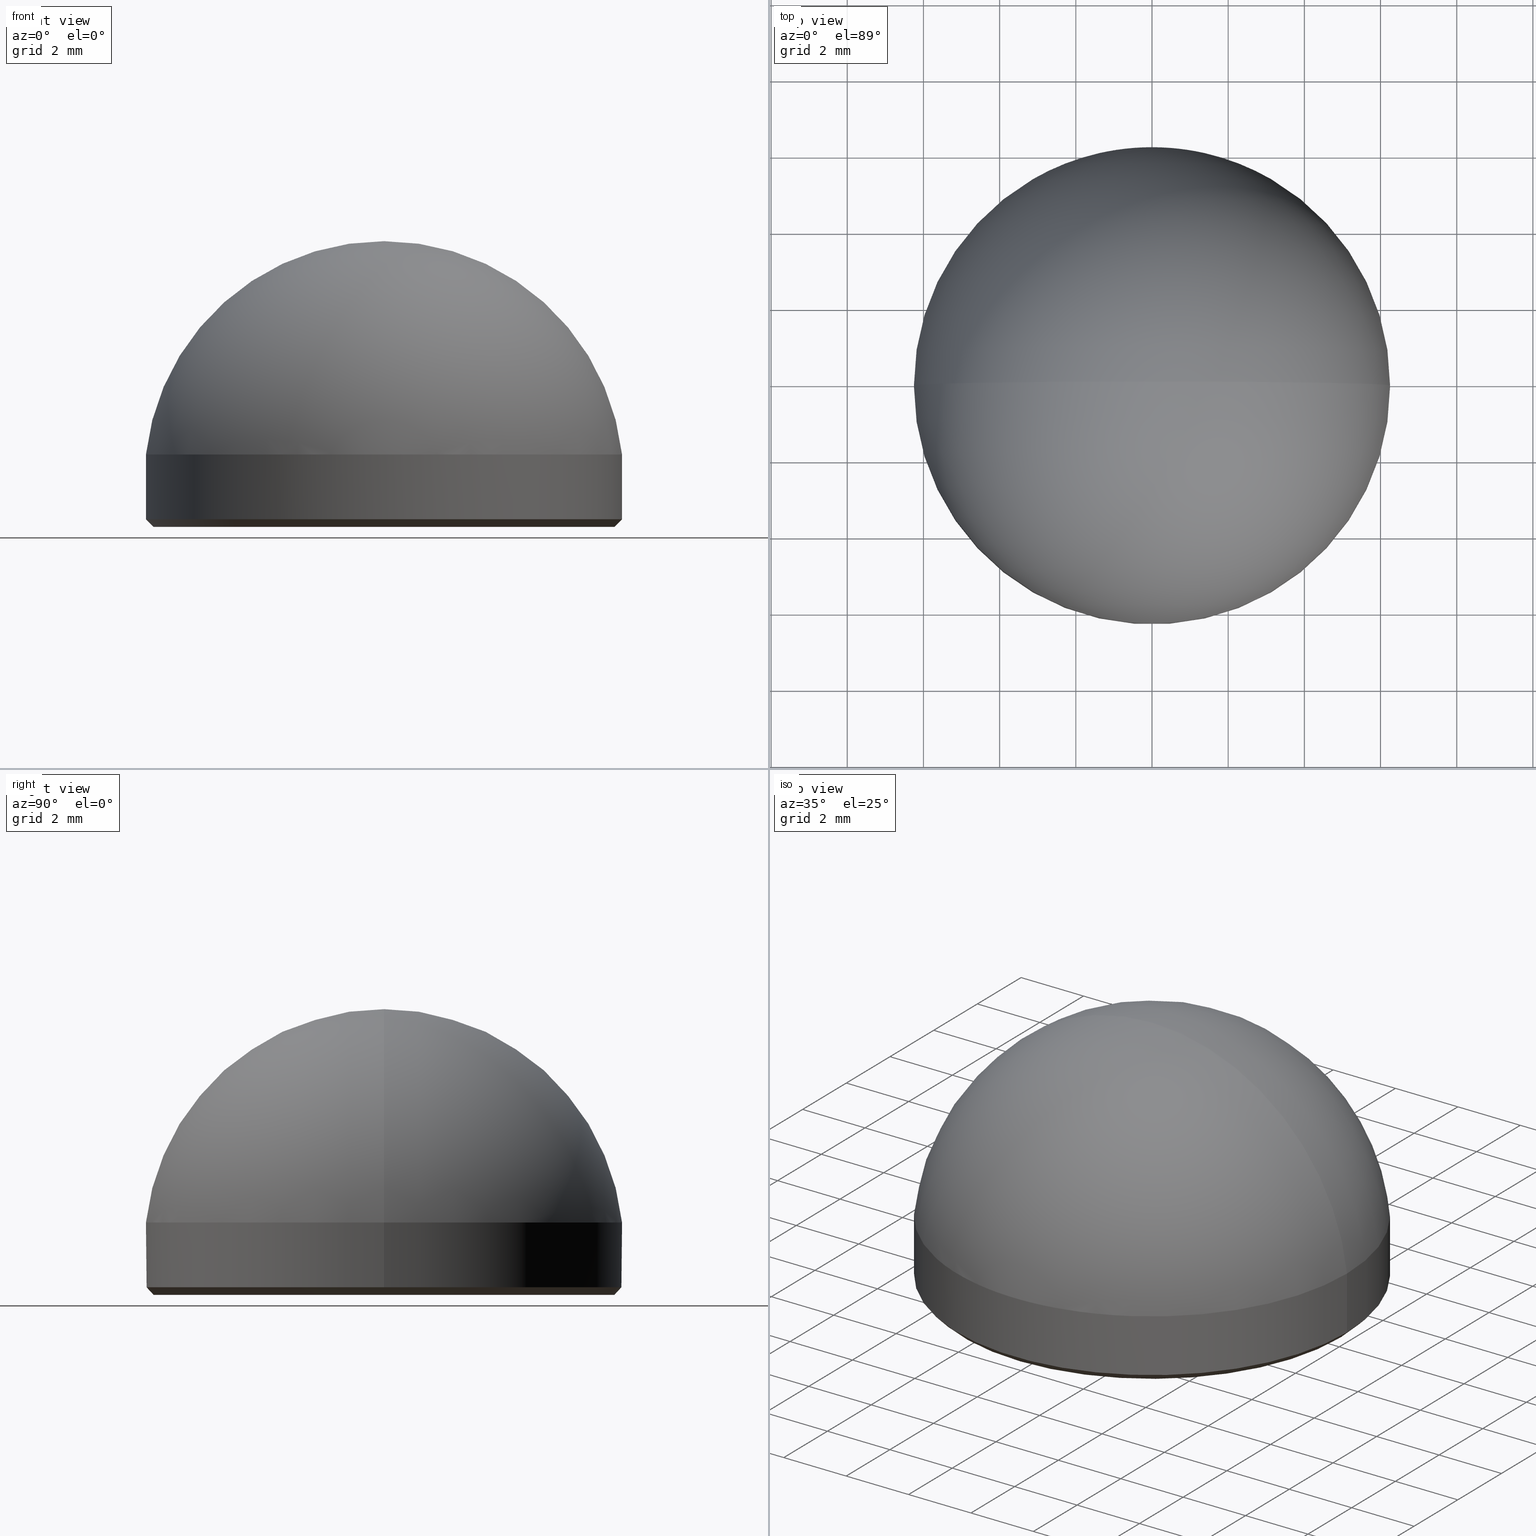
[diagram: canonical four-view strip — front | top / right | iso, engineering-drawing reading convention]
A machine part, canonical four-view strip (front | top / right | iso — engineering-drawing reading convention). The complete STEP part file that produces these views, byte-faithful:
ISO-10303-21;
HEADER;
FILE_DESCRIPTION (( 'STEP AP214' ),
    '1' );
FILE_NAME ('GLA21-012-010-UV.STEP',
    '2024-08-09T08:51:41',
    ( 'Windows User' ),
    ( 'P R C' ),
    'SwSTEP 2.0',
    'SolidWorks 2022',
    '' );
FILE_SCHEMA (( 'AUTOMOTIVE_DESIGN' ));
ENDSEC;

DATA;
#1 = VERTEX_POINT ( 'NONE', #51 ) ;
#2 = AXIS2_PLACEMENT_3D ( 'NONE', #143, #211, #59 ) ;
#3 =( NAMED_UNIT ( * ) PLANE_ANGLE_UNIT ( ) SI_UNIT ( $, .RADIAN. ) );
#4 =( NAMED_UNIT ( * ) PLANE_ANGLE_UNIT ( ) SI_UNIT ( $, .RADIAN. ) );
#5 = UNCERTAINTY_MEASURE_WITH_UNIT (LENGTH_MEASURE( 1.000000000000000082E-05 ), #66, 'distance_accuracy_value', 'NONE');
#6 = AXIS2_PLACEMENT_3D ( 'NONE', #45, #111, #176 ) ;
#7 = DIRECTION ( 'NONE',  ( 0.000000000000000000, 0.000000000000000000, 1.000000000000000000 ) ) ;
#8 =( NAMED_UNIT ( * ) SI_UNIT ( $, .STERADIAN. ) SOLID_ANGLE_UNIT ( ) );
#9 = DIRECTION ( 'NONE',  ( -0.000000000000000000, -0.000000000000000000, 1.000000000000000000 ) ) ;
#10 = DIRECTION ( 'NONE',  ( -0.000000000000000000, -0.000000000000000000, -1.000000000000000000 ) ) ;
#11 = DIRECTION ( 'NONE',  ( -0.000000000000000000, -0.000000000000000000, -1.000000000000000000 ) ) ;
#12 = VERTEX_POINT ( 'NONE', #181 ) ;
#13 = EDGE_CURVE ( 'NONE', #1, #200, #53, .T. ) ;
#14 = PRODUCT_DEFINITION_CONTEXT ( 'detailed design', #32, 'design' ) ;
#15 = PRODUCT_DEFINITION_FORMATION_WITH_SPECIFIED_SOURCE ( '�κ�', '', #147, .NOT_KNOWN. ) ;
#16 = AXIS2_PLACEMENT_3D ( 'NONE', #121, #10, #186 ) ;
#17 = ORIENTED_EDGE ( 'NONE', *, *, #117, .T. ) ;
#18 = ORIENTED_EDGE ( 'NONE', *, *, #193, .T. ) ;
#19 = AXIS2_PLACEMENT_3D ( 'NONE', #107, #90, #145 ) ;
#20 = AXIS2_PLACEMENT_3D ( 'NONE', #123, #187, #43 ) ;
#21 = ADVANCED_FACE ( 'NONE', ( #30 ), #68, .T. ) ;
#22 = FILL_AREA_STYLE ('',( #100 ) ) ;
#23 = CARTESIAN_POINT ( 'NONE',  ( -6.250000000000000000, 0.000000000000000000, 0.2000000000000083378 ) ) ;
#24 = CARTESIAN_POINT ( 'NONE',  ( 0.000000000000000000, 0.000000000000000000, 0.000000000000000000 ) ) ;
#25 = ADVANCED_BREP_SHAPE_REPRESENTATION ( 'GLA21-012-010-UV', ( #183, #198 ), #102 ) ;
#26 = DIRECTION ( 'NONE',  ( -1.224646799147353207E-16, -1.000000000000000000, -0.000000000000000000 ) ) ;
#27 = AXIS2_PLACEMENT_3D ( 'NONE', #105, #26, #89 ) ;
#28 = CARTESIAN_POINT ( 'NONE',  ( 0.000000000000000000, 0.000000000000000000, 0.2000000000000083378 ) ) ;
#29 = ORIENTED_EDGE ( 'NONE', *, *, #214, .F. ) ;
#30 = FACE_OUTER_BOUND ( 'NONE', #196, .T. ) ;
#31 = LINE ( 'NONE', #60, #85 ) ;
#32 = APPLICATION_CONTEXT ( 'automotive_design' ) ;
#33 = ORIENTED_EDGE ( 'NONE', *, *, #141, .T. ) ;
#34 = COLOUR_RGB ( '',1.000000000000000000, 1.000000000000000000, 1.000000000000000000 ) ;
#35 = EDGE_LOOP ( 'NONE', ( #29, #132, #76, #17 ) ) ;
#36 = CARTESIAN_POINT ( 'NONE',  ( 0.000000000000000000, 0.000000000000000000, 0.2000000000000083378 ) ) ;
#37 = ADVANCED_FACE ( 'NONE', ( #160 ), #213, .T. ) ;
#38 =( NAMED_UNIT ( * ) SI_UNIT ( $, .STERADIAN. ) SOLID_ANGLE_UNIT ( ) );
#39 = DIRECTION ( 'NONE',  ( -0.000000000000000000, -0.000000000000000000, 1.000000000000000000 ) ) ;
#40 = DIRECTION ( 'NONE',  ( 1.000000000000000000, 0.000000000000000000, 0.000000000000000000 ) ) ;
#41 = DIRECTION ( 'NONE',  ( 1.000000000000000000, 0.000000000000000000, 0.000000000000000000 ) ) ;
#42 = PRODUCT_RELATED_PRODUCT_CATEGORY ( 'part', '', ( #147 ) ) ;
#43 = DIRECTION ( 'NONE',  ( 1.000000000000000000, 0.000000000000000000, 0.000000000000000000 ) ) ;
#44 = AXIS2_PLACEMENT_3D ( 'NONE', #171, #157, #47 ) ;
#45 = CARTESIAN_POINT ( 'NONE',  ( 0.000000000000000000, 0.000000000000000000, 1.212276785714286209 ) ) ;
#46 = EDGE_LOOP ( 'NONE', ( #91, #95, #150, #98 ) ) ;
#47 = DIRECTION ( 'NONE',  ( 1.000000000000000000, 0.000000000000000000, 0.000000000000000000 ) ) ;
#48 = AXIS2_PLACEMENT_3D ( 'NONE', #149, #81, #101 ) ;
#49 = UNCERTAINTY_MEASURE_WITH_UNIT (LENGTH_MEASURE( 1.000000000000000082E-05 ), #182, 'distance_accuracy_value', 'NONE');
#50 = ORIENTED_EDGE ( 'NONE', *, *, #214, .T. ) ;
#51 = CARTESIAN_POINT ( 'NONE',  ( 6.250000000000000000, 7.654042494670955634E-16, 0.2000000000000083378 ) ) ;
#52 = EDGE_CURVE ( 'NONE', #64, #179, #96, .T. ) ;
#53 = CIRCLE ( 'NONE', #204, 6.250000000000000000 ) ;
#54 = DIRECTION ( 'NONE',  ( -0.7071067811865490160, 8.659560562354953812E-17, 0.7071067811865460184 ) ) ;
#55 = LINE ( 'NONE', #164, #152 ) ;
#56 = EDGE_CURVE ( 'NONE', #64, #200, #31, .T. ) ;
#57 = APPLICATION_PROTOCOL_DEFINITION ( 'draft international standard', 'automotive_design', 1998, #32 ) ;
#58 = CARTESIAN_POINT ( 'NONE',  ( -6.049999999999990941, 7.531577814756217134E-16, 0.000000000000000000 ) ) ;
#59 = DIRECTION ( 'NONE',  ( -1.000000000000000000, 0.000000000000000000, 0.000000000000000000 ) ) ;
#60 = CARTESIAN_POINT ( 'NONE',  ( -6.250000000000000000, 0.000000000000000000, 1.899999999999999911 ) ) ;
#61 = DIRECTION ( 'NONE',  ( -0.000000000000000000, -0.000000000000000000, -1.000000000000000000 ) ) ;
#62 = STYLED_ITEM ( 'NONE', ( #153 ), #183 ) ;
#63 = AXIS2_PLACEMENT_3D ( 'NONE', #174, #39, #104 ) ;
#64 = VERTEX_POINT ( 'NONE', #93 ) ;
#65 = VERTEX_POINT ( 'NONE', #58 ) ;
#66 =( LENGTH_UNIT ( ) NAMED_UNIT ( * ) SI_UNIT ( .MILLI., .METRE. ) );
#67 = SURFACE_SIDE_STYLE ('',( #84 ) ) ;
#68 = CONICAL_SURFACE ( 'NONE', #63, 6.250000000000000000, 0.7853981633974504994 ) ;
#69 = SURFACE_STYLE_FILL_AREA ( #199 ) ;
#70 = DIRECTION ( 'NONE',  ( -0.000000000000000000, -1.000000000000000000, 0.000000000000000000 ) ) ;
#71 = ADVANCED_FACE ( 'NONE', ( #173 ), #125, .T. ) ;
#72 = VECTOR ( 'NONE', #108, 1000.000000000000114 ) ;
#73 = FACE_OUTER_BOUND ( 'NONE', #35, .T. ) ;
#74 = CYLINDRICAL_SURFACE ( 'NONE', #2, 6.250000000000000000 ) ;
#75 = DIRECTION ( 'NONE',  ( -1.000000000000000000, 0.000000000000000000, 0.000000000000000000 ) ) ;
#76 = ORIENTED_EDGE ( 'NONE', *, *, #56, .T. ) ;
#77 = FACE_OUTER_BOUND ( 'NONE', #130, .T. ) ;
#78 = STYLED_ITEM ( 'NONE', ( #134 ), #25 ) ;
#79 = ORIENTED_EDGE ( 'NONE', *, *, #168, .F. ) ;
#80 = EDGE_LOOP ( 'NONE', ( #146, #128, #175 ) ) ;
#81 = DIRECTION ( 'NONE',  ( 0.000000000000000000, 0.000000000000000000, 1.000000000000000000 ) ) ;
#82 = MECHANICAL_DESIGN_GEOMETRIC_PRESENTATION_REPRESENTATION (  '', ( #62 ), #131 ) ;
#83 = DIRECTION ( 'NONE',  ( -0.000000000000000000, -0.000000000000000000, -1.000000000000000000 ) ) ;
#84 = SURFACE_STYLE_FILL_AREA ( #22 ) ;
#85 = VECTOR ( 'NONE', #11, 1000.000000000000000 ) ;
#86 = EDGE_CURVE ( 'NONE', #180, #65, #106, .T. ) ;
#87 = FACE_OUTER_BOUND ( 'NONE', #46, .T. ) ;
#88 = CIRCLE ( 'NONE', #48, 6.250000000000000000 ) ;
#89 = DIRECTION ( 'NONE',  ( 1.000000000000000000, -1.224646799147353454E-16, 0.000000000000000000 ) ) ;
#90 = DIRECTION ( 'NONE',  ( -0.000000000000000000, -0.000000000000000000, -1.000000000000000000 ) ) ;
#91 = ORIENTED_EDGE ( 'NONE', *, *, #184, .F. ) ;
#92 = DIRECTION ( 'NONE',  ( -0.000000000000000000, -0.000000000000000000, 1.000000000000000000 ) ) ;
#93 = CARTESIAN_POINT ( 'NONE',  ( -6.250000000000000000, 0.000000000000000000, 1.899999999999999911 ) ) ;
#94 = ADVANCED_FACE ( 'NONE', ( #77 ), #169, .T. ) ;
#95 = ORIENTED_EDGE ( 'NONE', *, *, #86, .F. ) ;
#96 = CIRCLE ( 'NONE', #6, 6.287723214285714235 ) ;
#97 = EDGE_LOOP ( 'NONE', ( #163, #110 ) ) ;
#98 = ORIENTED_EDGE ( 'NONE', *, *, #117, .F. ) ;
#99 = ORIENTED_EDGE ( 'NONE', *, *, #112, .F. ) ;
#100 = FILL_AREA_STYLE_COLOUR ( '', #138 ) ;
#101 = DIRECTION ( 'NONE',  ( 1.000000000000000000, 0.000000000000000000, 0.000000000000000000 ) ) ;
#102 =( GEOMETRIC_REPRESENTATION_CONTEXT ( 3 ) GLOBAL_UNCERTAINTY_ASSIGNED_CONTEXT ( ( #5 ) ) GLOBAL_UNIT_ASSIGNED_CONTEXT ( ( #66, #3, #201 ) ) REPRESENTATION_CONTEXT ( 'NONE', 'WORKASPACE' ) );
#103 = DIRECTION ( 'NONE',  ( 0.000000000000000000, 0.000000000000000000, 1.000000000000000000 ) ) ;
#104 = DIRECTION ( 'NONE',  ( 1.000000000000000000, 0.000000000000000000, 0.000000000000000000 ) ) ;
#105 = CARTESIAN_POINT ( 'NONE',  ( 0.000000000000000000, 0.000000000000000000, 1.212276785714286209 ) ) ;
#106 = CIRCLE ( 'NONE', #16, 6.049999999999990941 ) ;
#107 = CARTESIAN_POINT ( 'NONE',  ( 0.000000000000000000, 0.000000000000000000, 0.000000000000000000 ) ) ;
#108 = DIRECTION ( 'NONE',  ( 0.7071067811865490160, 0.000000000000000000, 0.7071067811865460184 ) ) ;
#109 = PRODUCT_DEFINITION_SHAPE ( 'NONE', 'NONE',  #144 ) ;
#110 = ORIENTED_EDGE ( 'NONE', *, *, #178, .T. ) ;
#111 = DIRECTION ( 'NONE',  ( 0.000000000000000000, 1.000000000000000000, 0.000000000000000000 ) ) ;
#112 = EDGE_CURVE ( 'NONE', #180, #1, #126, .T. ) ;
#113 = PRESENTATION_LAYER_ASSIGNMENT (  '', '', ( #62 ) ) ;
#114 = EDGE_LOOP ( 'NONE', ( #18, #33, #197 ) ) ;
#115 = AXIS2_PLACEMENT_3D ( 'NONE', #122, #70, #140 ) ;
#116 = ORIENTED_EDGE ( 'NONE', *, *, #178, .F. ) ;
#117 = EDGE_CURVE ( 'NONE', #200, #1, #216, .T. ) ;
#118 =( GEOMETRIC_REPRESENTATION_CONTEXT ( 3 ) GLOBAL_UNCERTAINTY_ASSIGNED_CONTEXT ( ( #120 ) ) GLOBAL_UNIT_ASSIGNED_CONTEXT ( ( #205, #170, #8 ) ) REPRESENTATION_CONTEXT ( 'NONE', 'WORKASPACE' ) );
#119 = CIRCLE ( 'NONE', #27, 6.287723214285714235 ) ;
#120 = UNCERTAINTY_MEASURE_WITH_UNIT (LENGTH_MEASURE( 1.000000000000000082E-05 ), #205, 'distance_accuracy_value', 'NONE');
#121 = CARTESIAN_POINT ( 'NONE',  ( 0.000000000000000000, 0.000000000000000000, 0.000000000000000000 ) ) ;
#122 = CARTESIAN_POINT ( 'NONE',  ( 0.000000000000000000, 0.000000000000000000, 1.212276785714286209 ) ) ;
#123 = CARTESIAN_POINT ( 'NONE',  ( 0.000000000000000000, 0.000000000000000000, 1.899999999999999911 ) ) ;
#124 = CIRCLE ( 'NONE', #20, 6.250000000000000000 ) ;
#125 = SPHERICAL_SURFACE ( 'NONE', #115, 6.287723214285714235 ) ;
#126 = LINE ( 'NONE', #192, #72 ) ;
#127 = CLOSED_SHELL ( 'NONE', ( #21, #71, #94, #155, #133, #37, #151 ) ) ;
#128 = ORIENTED_EDGE ( 'NONE', *, *, #168, .T. ) ;
#129 = FILL_AREA_STYLE_COLOUR ( '', #34 ) ;
#130 = EDGE_LOOP ( 'NONE', ( #79, #50, #159, #148 ) ) ;
#131 =( GEOMETRIC_REPRESENTATION_CONTEXT ( 3 ) GLOBAL_UNCERTAINTY_ASSIGNED_CONTEXT ( ( #49 ) ) GLOBAL_UNIT_ASSIGNED_CONTEXT ( ( #182, #4, #38 ) ) REPRESENTATION_CONTEXT ( 'NONE', 'WORKASPACE' ) );
#132 = ORIENTED_EDGE ( 'NONE', *, *, #193, .F. ) ;
#133 = ADVANCED_FACE ( 'NONE', ( #137 ), #210, .F. ) ;
#134 = PRESENTATION_STYLE_ASSIGNMENT (( #135 ) ) ;
#135 = SURFACE_STYLE_USAGE ( .BOTH. , #67 ) ;
#136 = LINE ( 'NONE', #206, #203 ) ;
#137 = FACE_OUTER_BOUND ( 'NONE', #97, .T. ) ;
#138 = COLOUR_RGB ( '',1.000000000000000000, 1.000000000000000000, 1.000000000000000000 ) ;
#139 = CARTESIAN_POINT ( 'NONE',  ( 0.000000000000000000, 0.000000000000000000, 0.000000000000000000 ) ) ;
#140 = DIRECTION ( 'NONE',  ( -1.000000000000000000, 0.000000000000000000, 0.000000000000000000 ) ) ;
#141 = EDGE_CURVE ( 'NONE', #12, #179, #119, .T. ) ;
#142 = PRODUCT_CONTEXT ( 'NONE', #208, 'mechanical' ) ;
#143 = CARTESIAN_POINT ( 'NONE',  ( 0.000000000000000000, 0.000000000000000000, 1.899999999999999911 ) ) ;
#144 = PRODUCT_DEFINITION ( 'δ֪', '', #15, #14 ) ;
#145 = DIRECTION ( 'NONE',  ( 1.000000000000000000, 0.000000000000000000, 0.000000000000000000 ) ) ;
#146 = ORIENTED_EDGE ( 'NONE', *, *, #141, .F. ) ;
#147 = PRODUCT ( 'GLA21-012-010-UV', 'GLA21-012-010-UV', '', ( #142 ) ) ;
#148 = ORIENTED_EDGE ( 'NONE', *, *, #56, .F. ) ;
#149 = CARTESIAN_POINT ( 'NONE',  ( 0.000000000000000000, 0.000000000000000000, 1.899999999999999911 ) ) ;
#150 = ORIENTED_EDGE ( 'NONE', *, *, #112, .T. ) ;
#151 = ADVANCED_FACE ( 'NONE', ( #87 ), #177, .T. ) ;
#152 = VECTOR ( 'NONE', #83, 1000.000000000000000 ) ;
#153 = PRESENTATION_STYLE_ASSIGNMENT (( #166 ) ) ;
#154 = DIRECTION ( 'NONE',  ( 1.000000000000000000, 0.000000000000000000, 0.000000000000000000 ) ) ;
#155 = ADVANCED_FACE ( 'NONE', ( #73 ), #74, .T. ) ;
#156 = CIRCLE ( 'NONE', #19, 6.049999999999990941 ) ;
#157 = DIRECTION ( 'NONE',  ( -0.000000000000000000, -0.000000000000000000, 1.000000000000000000 ) ) ;
#158 = DIRECTION ( 'NONE',  ( -0.000000000000000000, -1.000000000000000000, 0.000000000000000000 ) ) ;
#159 = ORIENTED_EDGE ( 'NONE', *, *, #13, .T. ) ;
#160 = FACE_OUTER_BOUND ( 'NONE', #80, .T. ) ;
#161 = ORIENTED_EDGE ( 'NONE', *, *, #13, .F. ) ;
#162 = DIRECTION ( 'NONE',  ( -1.000000000000000000, 0.000000000000000000, 0.000000000000000000 ) ) ;
#163 = ORIENTED_EDGE ( 'NONE', *, *, #86, .T. ) ;
#164 = CARTESIAN_POINT ( 'NONE',  ( 6.250000000000000000, 7.654042494670955634E-16, 1.899999999999999911 ) ) ;
#165 = SURFACE_SIDE_STYLE ('',( #69 ) ) ;
#166 = SURFACE_STYLE_USAGE ( .BOTH. , #165 ) ;
#167 = SHAPE_DEFINITION_REPRESENTATION ( #109, #25 ) ;
#168 = EDGE_CURVE ( 'NONE', #12, #64, #124, .T. ) ;
#169 = CYLINDRICAL_SURFACE ( 'NONE', #194, 6.250000000000000000 ) ;
#170 =( NAMED_UNIT ( * ) PLANE_ANGLE_UNIT ( ) SI_UNIT ( $, .RADIAN. ) );
#171 = CARTESIAN_POINT ( 'NONE',  ( 0.000000000000000000, 0.000000000000000000, 0.2000000000000083378 ) ) ;
#172 = AXIS2_PLACEMENT_3D ( 'NONE', #24, #7, #207 ) ;
#173 = FACE_OUTER_BOUND ( 'NONE', #114, .T. ) ;
#174 = CARTESIAN_POINT ( 'NONE',  ( 0.000000000000000000, 0.000000000000000000, 0.2000000000000083378 ) ) ;
#175 = ORIENTED_EDGE ( 'NONE', *, *, #52, .T. ) ;
#176 = DIRECTION ( 'NONE',  ( 0.000000000000000000, 0.000000000000000000, 1.000000000000000000 ) ) ;
#177 = CONICAL_SURFACE ( 'NONE', #209, 6.250000000000000000, 0.7853981633974504994 ) ;
#178 = EDGE_CURVE ( 'NONE', #65, #180, #156, .T. ) ;
#179 = VERTEX_POINT ( 'NONE', #212 ) ;
#180 = VERTEX_POINT ( 'NONE', #195 ) ;
#181 = CARTESIAN_POINT ( 'NONE',  ( 6.250000000000000000, 7.654042494670955634E-16, 1.899999999999999911 ) ) ;
#182 =( LENGTH_UNIT ( ) NAMED_UNIT ( * ) SI_UNIT ( .MILLI., .METRE. ) );
#183 = MANIFOLD_SOLID_BREP ( '����1', #127 ) ;
#184 = EDGE_CURVE ( 'NONE', #65, #200, #136, .T. ) ;
#185 = CARTESIAN_POINT ( 'NONE',  ( 0.000000000000000000, 0.000000000000000000, 1.212276785714286209 ) ) ;
#186 = DIRECTION ( 'NONE',  ( 1.000000000000000000, 0.000000000000000000, 0.000000000000000000 ) ) ;
#187 = DIRECTION ( 'NONE',  ( 0.000000000000000000, 0.000000000000000000, 1.000000000000000000 ) ) ;
#188 = MECHANICAL_DESIGN_GEOMETRIC_PRESENTATION_REPRESENTATION (  '', ( #78 ), #118 ) ;
#189 = AXIS2_PLACEMENT_3D ( 'NONE', #185, #158, #162 ) ;
#190 = CARTESIAN_POINT ( 'NONE',  ( 0.000000000000000000, 0.000000000000000000, 1.899999999999999911 ) ) ;
#191 = ORIENTED_EDGE ( 'NONE', *, *, #184, .T. ) ;
#192 = CARTESIAN_POINT ( 'NONE',  ( 6.250000000000000000, 0.000000000000000000, 0.2000000000000083378 ) ) ;
#193 = EDGE_CURVE ( 'NONE', #64, #12, #88, .T. ) ;
#194 = AXIS2_PLACEMENT_3D ( 'NONE', #190, #61, #75 ) ;
#195 = CARTESIAN_POINT ( 'NONE',  ( 6.049999999999990941, 0.000000000000000000, 0.000000000000000000 ) ) ;
#196 = EDGE_LOOP ( 'NONE', ( #116, #191, #161, #99 ) ) ;
#197 = ORIENTED_EDGE ( 'NONE', *, *, #52, .F. ) ;
#198 = AXIS2_PLACEMENT_3D ( 'NONE', #139, #103, #40 ) ;
#199 = FILL_AREA_STYLE ('',( #129 ) ) ;
#200 = VERTEX_POINT ( 'NONE', #23 ) ;
#201 =( NAMED_UNIT ( * ) SI_UNIT ( $, .STERADIAN. ) SOLID_ANGLE_UNIT ( ) );
#202 = APPLICATION_PROTOCOL_DEFINITION ( 'draft international standard', 'automotive_design', 1998, #208 ) ;
#203 = VECTOR ( 'NONE', #54, 1000.000000000000114 ) ;
#204 = AXIS2_PLACEMENT_3D ( 'NONE', #36, #92, #41 ) ;
#205 =( LENGTH_UNIT ( ) NAMED_UNIT ( * ) SI_UNIT ( .MILLI., .METRE. ) );
#206 = CARTESIAN_POINT ( 'NONE',  ( -6.250000000000000000, 7.654042494670957606E-16, 0.2000000000000083378 ) ) ;
#207 = DIRECTION ( 'NONE',  ( 1.000000000000000000, 0.000000000000000000, -0.000000000000000000 ) ) ;
#208 = APPLICATION_CONTEXT ( 'automotive_design' ) ;
#209 = AXIS2_PLACEMENT_3D ( 'NONE', #28, #9, #154 ) ;
#210 = PLANE ( 'NONE',  #172 ) ;
#211 = DIRECTION ( 'NONE',  ( -0.000000000000000000, -0.000000000000000000, -1.000000000000000000 ) ) ;
#212 = CARTESIAN_POINT ( 'NONE',  ( -3.850120054149754005E-16, 0.000000000000000000, 7.500000000000000888 ) ) ;
#213 = SPHERICAL_SURFACE ( 'NONE', #189, 6.287723214285714235 ) ;
#214 = EDGE_CURVE ( 'NONE', #12, #1, #55, .T. ) ;
#215 = PRESENTATION_LAYER_ASSIGNMENT (  '', '', ( #78 ) ) ;
#216 = CIRCLE ( 'NONE', #44, 6.250000000000000000 ) ;
ENDSEC;
END-ISO-10303-21;
